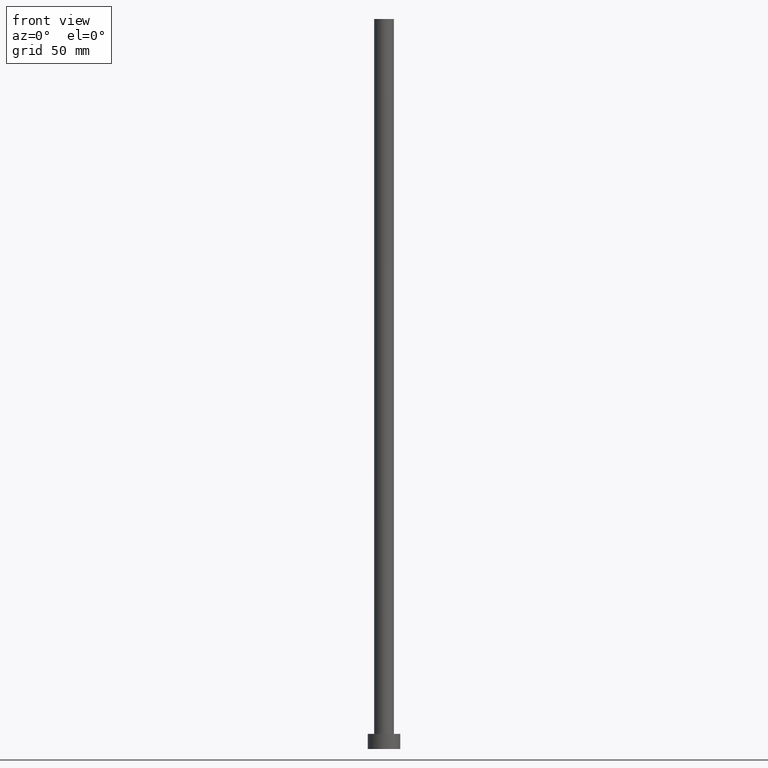
[diagram: clean part render]
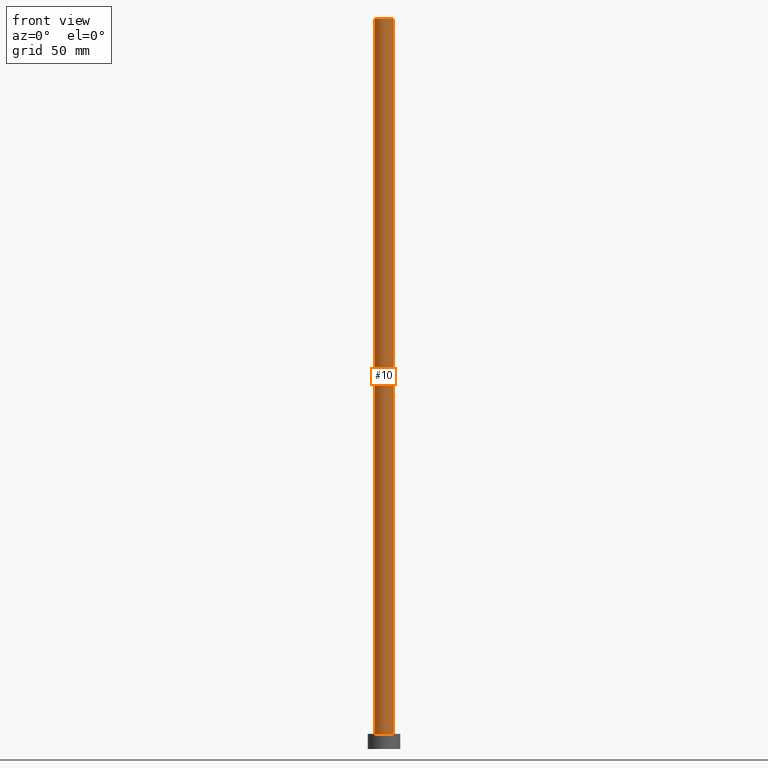
[diagram: same view with one face highlighted and labeled with its STEP entity id]
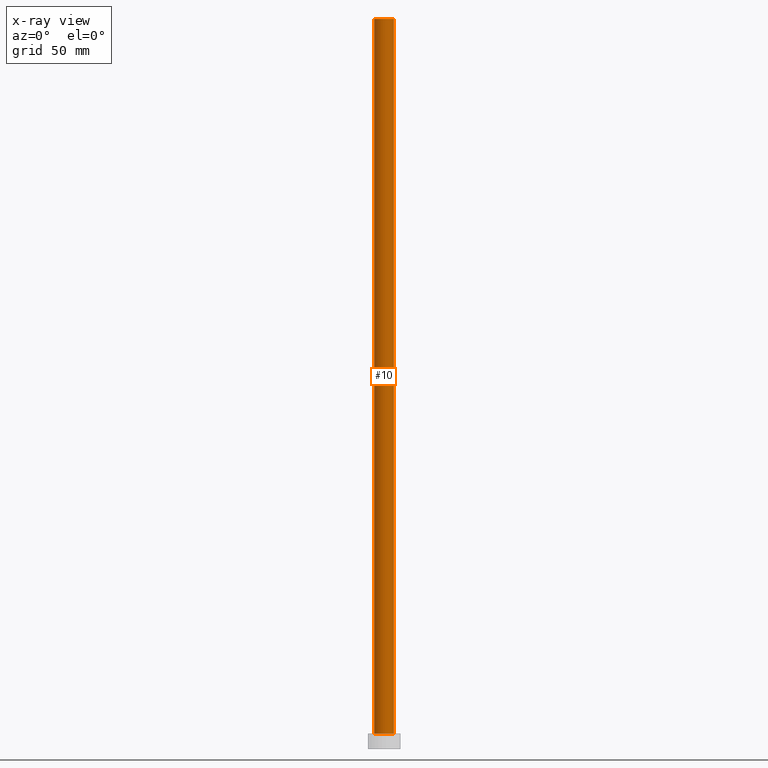
[diagram: x-ray of the same camera — body ghosted, the highlighted face saturated]
A machine part, front view. The second image highlights one B-rep face of the part: STEP entity #10.
The next image is the same camera in x-ray: the body ghosted, the highlighted face saturated — about 0% of this face is hidden behind the body in this view.
In plain terms, the highlighted cylindrical surface (edge-blend (fillet) strip) has radius 4.25 mm, axis along (-0, -0, -1).
Its self-contained STEP definition (entity closure, byte-faithful):
#8 = ORIENTED_EDGE ( 'NONE', *, *, #140, .F. ) ;
#10 = ADVANCED_FACE ( 'NONE', ( #40 ), #19, .T. ) ;
#17 = VECTOR ( 'NONE', #55, 1000.000000000000000 ) ;
#19 = CYLINDRICAL_SURFACE ( 'NONE', #75, 4.250000000000000000 ) ;
#24 = DIRECTION ( 'NONE',  ( 0.000000000000000000, 0.000000000000000000, 1.000000000000000000 ) ) ;
#25 = DIRECTION ( 'NONE',  ( -0.000000000000000000, -0.000000000000000000, -1.000000000000000000 ) ) ;
#26 = DIRECTION ( 'NONE',  ( 0.000000000000000000, 0.000000000000000000, 1.000000000000000000 ) ) ;
#30 = DIRECTION ( 'NONE',  ( 1.000000000000000000, 0.000000000000000000, 0.000000000000000000 ) ) ;
#40 = FACE_OUTER_BOUND ( 'NONE', #118, .T. ) ;
#48 = CARTESIAN_POINT ( 'NONE',  ( -4.250000000000000000, 0.000000000000000000, 315.0000000000000000 ) ) ;
#55 = DIRECTION ( 'NONE',  ( -0.000000000000000000, -0.000000000000000000, -1.000000000000000000 ) ) ;
#63 = CIRCLE ( 'NONE', #198, 4.250000000000000000 ) ;
#67 = CARTESIAN_POINT ( 'NONE',  ( 4.250000000000000000, 5.204748896376249713E-16, 315.0000000000000000 ) ) ;
#68 = CARTESIAN_POINT ( 'NONE',  ( 4.250000000000000000, 5.204748896376249713E-16, 6.500000000000000000 ) ) ;
#75 = AXIS2_PLACEMENT_3D ( 'NONE', #120, #192, #226 ) ;
#86 = VECTOR ( 'NONE', #25, 1000.000000000000000 ) ;
#97 = ORIENTED_EDGE ( 'NONE', *, *, #125, .F. ) ;
#109 = DIRECTION ( 'NONE',  ( 1.000000000000000000, 0.000000000000000000, 0.000000000000000000 ) ) ;
#111 = EDGE_CURVE ( 'NONE', #191, #212, #134, .T. ) ;
#114 = EDGE_CURVE ( 'NONE', #117, #191, #181, .T. ) ;
#117 = VERTEX_POINT ( 'NONE', #48 ) ;
#118 = EDGE_LOOP ( 'NONE', ( #8, #97, #135, #240 ) ) ;
#120 = CARTESIAN_POINT ( 'NONE',  ( 0.000000000000000000, 0.000000000000000000, 315.0000000000000000 ) ) ;
#125 = EDGE_CURVE ( 'NONE', #117, #216, #63, .T. ) ;
#134 = CIRCLE ( 'NONE', #195, 4.250000000000000000 ) ;
#135 = ORIENTED_EDGE ( 'NONE', *, *, #114, .T. ) ;
#140 = EDGE_CURVE ( 'NONE', #216, #212, #233, .T. ) ;
#149 = CARTESIAN_POINT ( 'NONE',  ( -4.250000000000000000, 0.000000000000000000, 6.500000000000000000 ) ) ;
#164 = CARTESIAN_POINT ( 'NONE',  ( 0.000000000000000000, 0.000000000000000000, 315.0000000000000000 ) ) ;
#181 = LINE ( 'NONE', #183, #17 ) ;
#183 = CARTESIAN_POINT ( 'NONE',  ( -4.250000000000000000, 0.000000000000000000, 315.0000000000000000 ) ) ;
#191 = VERTEX_POINT ( 'NONE', #149 ) ;
#192 = DIRECTION ( 'NONE',  ( -0.000000000000000000, -0.000000000000000000, -1.000000000000000000 ) ) ;
#195 = AXIS2_PLACEMENT_3D ( 'NONE', #230, #26, #30 ) ;
#198 = AXIS2_PLACEMENT_3D ( 'NONE', #164, #24, #109 ) ;
#212 = VERTEX_POINT ( 'NONE', #68 ) ;
#216 = VERTEX_POINT ( 'NONE', #229 ) ;
#226 = DIRECTION ( 'NONE',  ( -1.000000000000000000, 0.000000000000000000, 0.000000000000000000 ) ) ;
#229 = CARTESIAN_POINT ( 'NONE',  ( 4.250000000000000000, 5.204748896376249713E-16, 315.0000000000000000 ) ) ;
#230 = CARTESIAN_POINT ( 'NONE',  ( 0.000000000000000000, 0.000000000000000000, 6.500000000000000000 ) ) ;
#233 = LINE ( 'NONE', #67, #86 ) ;
#240 = ORIENTED_EDGE ( 'NONE', *, *, #111, .T. ) ;